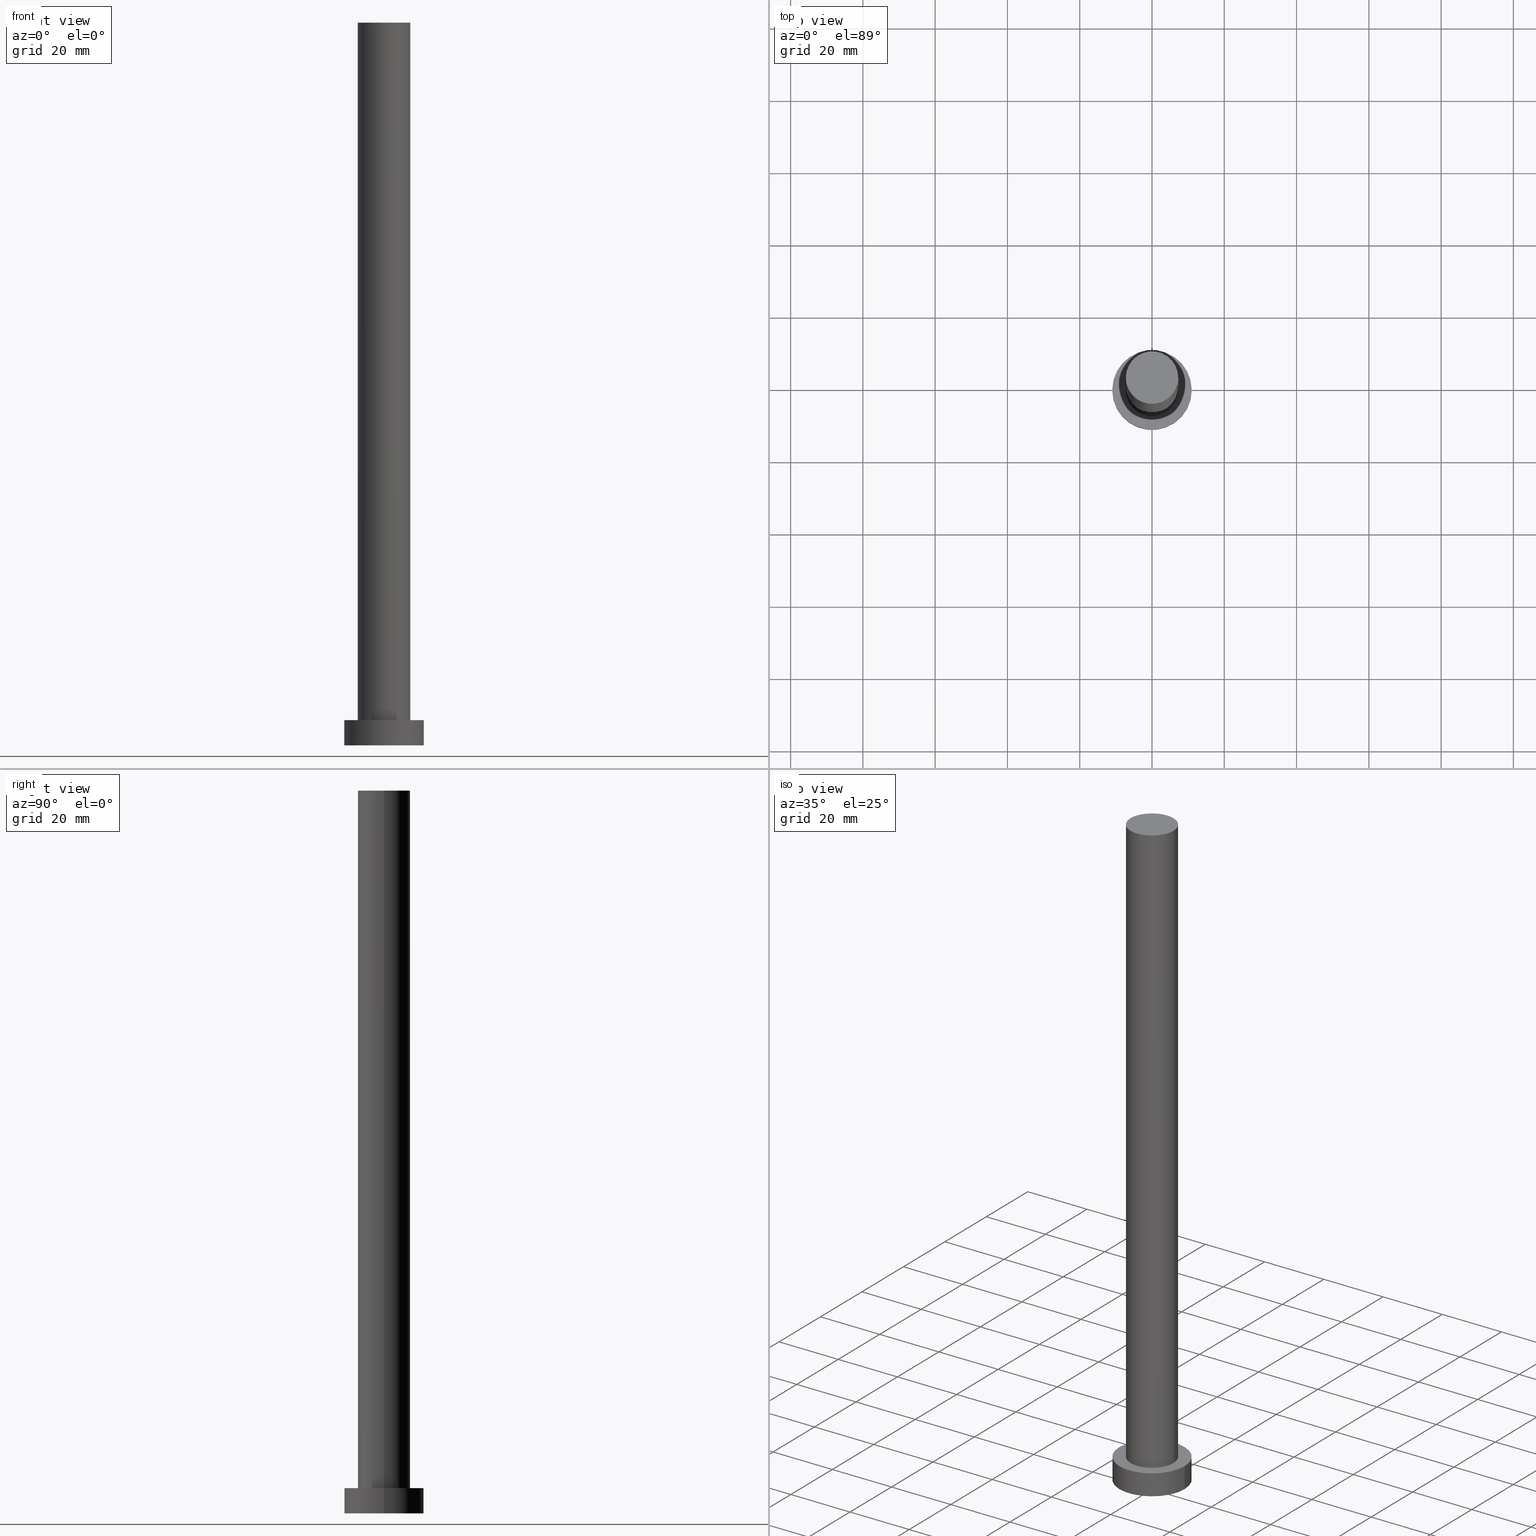
[diagram: canonical four-view strip — front | top / right | iso, engineering-drawing reading convention]
A machine part, canonical four-view strip (front | top / right | iso — engineering-drawing reading convention). The complete STEP part file that produces these views, byte-faithful:
ISO-10303-21;
HEADER;
FILE_DESCRIPTION (( 'STEP AP203' ),
    '1' );
FILE_NAME ('6792.STEP',
    '2023-02-13T10:41:29',
    ( '' ),
    ( '' ),
    'SwSTEP 2.0',
    'SolidWorks 2019',
    '' );
FILE_SCHEMA (( 'CONFIG_CONTROL_DESIGN' ));
ENDSEC;

DATA;
#1 = DIRECTION ( 'NONE',  ( 1.000000000000000000, 0.000000000000000000, 0.000000000000000000 ) ) ;
#2 = EDGE_CURVE ( 'NONE', #222, #101, #50, .T. ) ;
#3 = CLOSED_SHELL ( 'NONE', ( #128, #143, #37, #9, #38, #205, #158 ) ) ;
#4 = AXIS2_PLACEMENT_3D ( 'NONE', #5, #61, #171 ) ;
#5 = CARTESIAN_POINT ( 'NONE',  ( 0.000000000000000000, 0.000000000000000000, 200.0000000000000000 ) ) ;
#6 = DIRECTION ( 'NONE',  ( -0.000000000000000000, -0.000000000000000000, -1.000000000000000000 ) ) ;
#7 = DATE_AND_TIME ( #172, #234 ) ;
#8 = PLANE ( 'NONE',  #82 ) ;
#9 = ADVANCED_FACE ( 'NONE', ( #17, #70 ), #150, .T. ) ;
#10 = CARTESIAN_POINT ( 'NONE',  ( 7.250000000000000000, 8.878689293818310074E-16, 7.000000000000000000 ) ) ;
#11 = DIRECTION ( 'NONE',  ( -0.000000000000000000, -0.000000000000000000, -1.000000000000000000 ) ) ;
#12 = EDGE_LOOP ( 'NONE', ( #35, #184, #30, #108 ) ) ;
#13 = PRODUCT ( '6792', '6792', '', ( #134 ) ) ;
#14 = ORIENTED_EDGE ( 'NONE', *, *, #167, .F. ) ;
#15 = CC_DESIGN_DATE_AND_TIME_ASSIGNMENT ( #7, #153, ( #145 ) ) ;
#16 = AXIS2_PLACEMENT_3D ( 'NONE', #57, #75, #1 ) ;
#17 = FACE_BOUND ( 'NONE', #54, .T. ) ;
#18 = VERTEX_POINT ( 'NONE', #89 ) ;
#19 = CARTESIAN_POINT ( 'NONE',  ( 0.000000000000000000, 0.000000000000000000, 200.0000000000000000 ) ) ;
#20 = LINE ( 'NONE', #149, #116 ) ;
#21 = COORDINATED_UNIVERSAL_TIME_OFFSET ( 1, 0, .AHEAD. ) ;
#22 = CALENDAR_DATE ( 2023, 13, 2 ) ;
#23 = DIRECTION ( 'NONE',  ( -0.000000000000000000, -0.000000000000000000, -1.000000000000000000 ) ) ;
#24 = DIRECTION ( 'NONE',  ( 1.000000000000000000, 0.000000000000000000, -0.000000000000000000 ) ) ;
#25 = EDGE_LOOP ( 'NONE', ( #162, #105, #240, #68 ) ) ;
#26 = FACE_OUTER_BOUND ( 'NONE', #12, .T. ) ;
#27 = AXIS2_PLACEMENT_3D ( 'NONE', #193, #58, #138 ) ;
#28 = DIRECTION ( 'NONE',  ( 1.000000000000000000, 0.000000000000000000, 0.000000000000000000 ) ) ;
#29 = LOCAL_TIME ( 11, 41, 29.00000000000000000, #91 ) ;
#30 = ORIENTED_EDGE ( 'NONE', *, *, #167, .T. ) ;
#31 = APPROVAL ( #141, 'NEUR�EN�' ) ;
#32 = AXIS2_PLACEMENT_3D ( 'NONE', #88, #73, #152 ) ;
#33 = ORIENTED_EDGE ( 'NONE', *, *, #148, .F. ) ;
#34 = ORIENTED_EDGE ( 'NONE', *, *, #62, .T. ) ;
#35 = ORIENTED_EDGE ( 'NONE', *, *, #48, .F. ) ;
#36 = APPROVAL_STATUS ( 'not_yet_approved' ) ;
#37 = ADVANCED_FACE ( 'NONE', ( #42 ), #242, .T. ) ;
#38 = ADVANCED_FACE ( 'NONE', ( #55 ), #216, .F. ) ;
#39 = CARTESIAN_POINT ( 'NONE',  ( 0.000000000000000000, 0.000000000000000000, 0.000000000000000000 ) ) ;
#40 = CYLINDRICAL_SURFACE ( 'NONE', #120, 7.250000000000000000 ) ;
#41 = DATE_AND_TIME ( #93, #29 ) ;
#42 = FACE_OUTER_BOUND ( 'NONE', #209, .T. ) ;
#43 = AXIS2_PLACEMENT_3D ( 'NONE', #109, #46, #174 ) ;
#44 = CARTESIAN_POINT ( 'NONE',  ( 7.250000000000000000, 8.878689293818310074E-16, 200.0000000000000000 ) ) ;
#45 = DIRECTION ( 'NONE',  ( -1.000000000000000000, 0.000000000000000000, 0.000000000000000000 ) ) ;
#46 = DIRECTION ( 'NONE',  ( 0.000000000000000000, 0.000000000000000000, 1.000000000000000000 ) ) ;
#47 = DIRECTION ( 'NONE',  ( 1.000000000000000000, 0.000000000000000000, 0.000000000000000000 ) ) ;
#48 = EDGE_CURVE ( 'NONE', #210, #18, #182, .T. ) ;
#49 = PERSON_AND_ORGANIZATION_ROLE ( 'creator' ) ;
#50 = CIRCLE ( 'NONE', #124, 11.00000000000000000 ) ;
#51 = CC_DESIGN_APPROVAL ( #31, ( #106 ) ) ;
#52 = VERTEX_POINT ( 'NONE', #10 ) ;
#53 = CIRCLE ( 'NONE', #65, 7.250000000000000000 ) ;
#54 = EDGE_LOOP ( 'NONE', ( #166, #183 ) ) ;
#55 = FACE_OUTER_BOUND ( 'NONE', #218, .T. ) ;
#56 = LINE ( 'NONE', #86, #186 ) ;
#57 = CARTESIAN_POINT ( 'NONE',  ( 0.000000000000000000, 0.000000000000000000, 200.0000000000000000 ) ) ;
#58 = DIRECTION ( 'NONE',  ( 0.000000000000000000, 0.000000000000000000, 1.000000000000000000 ) ) ;
#59 = CC_DESIGN_SECURITY_CLASSIFICATION ( #106, ( #207 ) ) ;
#60 =( NAMED_UNIT ( * ) PLANE_ANGLE_UNIT ( ) SI_UNIT ( $, .RADIAN. ) );
#61 = DIRECTION ( 'NONE',  ( 0.000000000000000000, 0.000000000000000000, 1.000000000000000000 ) ) ;
#62 = EDGE_CURVE ( 'NONE', #18, #222, #56, .T. ) ;
#63 = PERSON_AND_ORGANIZATION ( #64, #155 ) ;
#64 = PERSON ( 'NEUR�EN�', 'NEUR�EN�', 'NEUR�EN�', ('NEUR�EN�'), ('NEUR�EN�'), ('NEUR�EN�') ) ;
#65 = AXIS2_PLACEMENT_3D ( 'NONE', #241, #177, #47 ) ;
#66 = CC_DESIGN_PERSON_AND_ORGANIZATION_ASSIGNMENT ( #163, #144, ( #207 ) ) ;
#67 = ORIENTED_EDGE ( 'NONE', *, *, #215, .F. ) ;
#68 = ORIENTED_EDGE ( 'NONE', *, *, #161, .F. ) ;
#69 = PERSON_AND_ORGANIZATION ( #64, #155 ) ;
#70 = FACE_OUTER_BOUND ( 'NONE', #81, .T. ) ;
#71 = CARTESIAN_POINT ( 'NONE',  ( 0.000000000000000000, 0.000000000000000000, 200.0000000000000000 ) ) ;
#72 = DESIGN_CONTEXT ( 'detailed design', #255, 'design' ) ;
#73 = DIRECTION ( 'NONE',  ( 0.000000000000000000, 0.000000000000000000, 1.000000000000000000 ) ) ;
#74 = PERSON_AND_ORGANIZATION_ROLE ( 'creator' ) ;
#75 = DIRECTION ( 'NONE',  ( 0.000000000000000000, 0.000000000000000000, 1.000000000000000000 ) ) ;
#76 = CARTESIAN_POINT ( 'NONE',  ( 0.000000000000000000, 0.000000000000000000, 7.000000000000000000 ) ) ;
#77 = CARTESIAN_POINT ( 'NONE',  ( -7.250000000000000000, 0.000000000000000000, 7.000000000000000000 ) ) ;
#78 = DATE_AND_TIME ( #230, #98 ) ;
#79 = CC_DESIGN_APPROVAL ( #83, ( #145 ) ) ;
#80 = PRODUCT_RELATED_PRODUCT_CATEGORY ( 'detail', '', ( #13 ) ) ;
#81 = EDGE_LOOP ( 'NONE', ( #164, #176 ) ) ;
#82 = AXIS2_PLACEMENT_3D ( 'NONE', #71, #130, #157 ) ;
#83 = APPROVAL ( #36, 'NEUR�EN�' ) ;
#84 = APPROVAL_ROLE ( '' ) ;
#85 = DIRECTION ( 'NONE',  ( 0.000000000000000000, 0.000000000000000000, 1.000000000000000000 ) ) ;
#86 = CARTESIAN_POINT ( 'NONE',  ( -11.00000000000000000, 0.000000000000000000, 7.000000000000000000 ) ) ;
#87 = APPROVAL ( #224, 'NEUR�EN�' ) ;
#88 = CARTESIAN_POINT ( 'NONE',  ( 0.000000000000000000, 0.000000000000000000, 0.000000000000000000 ) ) ;
#89 = CARTESIAN_POINT ( 'NONE',  ( -11.00000000000000000, 0.000000000000000000, 7.000000000000000000 ) ) ;
#90 = LINE ( 'NONE', #169, #102 ) ;
#91 = COORDINATED_UNIVERSAL_TIME_OFFSET ( 1, 0, .AHEAD. ) ;
#92 = DIRECTION ( 'NONE',  ( -1.000000000000000000, 0.000000000000000000, 0.000000000000000000 ) ) ;
#93 = CALENDAR_DATE ( 2023, 13, 2 ) ;
#94 = DIRECTION ( 'NONE',  ( 1.000000000000000000, 0.000000000000000000, 0.000000000000000000 ) ) ;
#95 = FACE_OUTER_BOUND ( 'NONE', #204, .T. ) ;
#96 = APPROVAL_ROLE ( '' ) ;
#97 = APPROVAL_PERSON_ORGANIZATION ( #244, #83, #84 ) ;
#98 = LOCAL_TIME ( 11, 41, 29.00000000000000000, #140 ) ;
#99 = ORIENTED_EDGE ( 'NONE', *, *, #161, .T. ) ;
#100 = CC_DESIGN_PERSON_AND_ORGANIZATION_ASSIGNMENT ( #187, #123, ( #13 ) ) ;
#101 = VERTEX_POINT ( 'NONE', #127 ) ;
#102 = VECTOR ( 'NONE', #23, 1000.000000000000000 ) ;
#103 = EDGE_LOOP ( 'NONE', ( #146, #203 ) ) ;
#104 = CC_DESIGN_PERSON_AND_ORGANIZATION_ASSIGNMENT ( #254, #49, ( #207 ) ) ;
#105 = ORIENTED_EDGE ( 'NONE', *, *, #194, .T. ) ;
#106 = SECURITY_CLASSIFICATION ( '', '', #232 ) ;
#107 = DIRECTION ( 'NONE',  ( -1.000000000000000000, 0.000000000000000000, 0.000000000000000000 ) ) ;
#108 = ORIENTED_EDGE ( 'NONE', *, *, #62, .F. ) ;
#109 = CARTESIAN_POINT ( 'NONE',  ( 0.000000000000000000, 0.000000000000000000, 7.000000000000000000 ) ) ;
#110 = APPROVAL_DATE_TIME ( #41, #83 ) ;
#111 = CC_DESIGN_APPROVAL ( #87, ( #207 ) ) ;
#112 = CIRCLE ( 'NONE', #43, 7.250000000000000000 ) ;
#113 = APPROVAL_PERSON_ORGANIZATION ( #69, #87, #211 ) ;
#114 = CYLINDRICAL_SURFACE ( 'NONE', #213, 11.00000000000000000 ) ;
#115 = MANIFOLD_SOLID_BREP ( 'P�idat vysunut�m3', #3 ) ;
#116 = VECTOR ( 'NONE', #195, 1000.000000000000000 ) ;
#117 = CIRCLE ( 'NONE', #4, 7.250000000000000000 ) ;
#118 = COORDINATED_UNIVERSAL_TIME_OFFSET ( 1, 0, .AHEAD. ) ;
#119 = CARTESIAN_POINT ( 'NONE',  ( 0.000000000000000000, 0.000000000000000000, 0.000000000000000000 ) ) ;
#120 = AXIS2_PLACEMENT_3D ( 'NONE', #19, #6, #107 ) ;
#121 = PERSON_AND_ORGANIZATION ( #64, #155 ) ;
#122 = VERTEX_POINT ( 'NONE', #190 ) ;
#123 = PERSON_AND_ORGANIZATION_ROLE ( 'design_owner' ) ;
#124 = AXIS2_PLACEMENT_3D ( 'NONE', #132, #188, #126 ) ;
#125 =( GEOMETRIC_REPRESENTATION_CONTEXT ( 3 ) GLOBAL_UNCERTAINTY_ASSIGNED_CONTEXT ( ( #165 ) ) GLOBAL_UNIT_ASSIGNED_CONTEXT ( ( #246, #60, #196 ) ) REPRESENTATION_CONTEXT ( 'NONE', 'WORKASPACE' ) );
#126 = DIRECTION ( 'NONE',  ( 1.000000000000000000, 0.000000000000000000, 0.000000000000000000 ) ) ;
#127 = CARTESIAN_POINT ( 'NONE',  ( 11.00000000000000000, 1.347111479062088405E-15, 0.000000000000000000 ) ) ;
#128 = ADVANCED_FACE ( 'NONE', ( #250 ), #40, .T. ) ;
#129 = CARTESIAN_POINT ( 'NONE',  ( 0.000000000000000000, 0.000000000000000000, 7.000000000000000000 ) ) ;
#130 = DIRECTION ( 'NONE',  ( 0.000000000000000000, 0.000000000000000000, 1.000000000000000000 ) ) ;
#131 = DATE_AND_TIME ( #22, #147 ) ;
#132 = CARTESIAN_POINT ( 'NONE',  ( 0.000000000000000000, 0.000000000000000000, 0.000000000000000000 ) ) ;
#133 = CARTESIAN_POINT ( 'NONE',  ( -7.250000000000000000, 0.000000000000000000, 200.0000000000000000 ) ) ;
#134 = MECHANICAL_CONTEXT ( 'NONE', #251, 'mechanical' ) ;
#135 = APPROVAL_PERSON_ORGANIZATION ( #63, #31, #96 ) ;
#136 = VERTEX_POINT ( 'NONE', #77 ) ;
#137 = CC_DESIGN_PERSON_AND_ORGANIZATION_ASSIGNMENT ( #121, #201, ( #106 ) ) ;
#138 = DIRECTION ( 'NONE',  ( 1.000000000000000000, 0.000000000000000000, 0.000000000000000000 ) ) ;
#139 = DIRECTION ( 'NONE',  ( -0.000000000000000000, -0.000000000000000000, -1.000000000000000000 ) ) ;
#140 = COORDINATED_UNIVERSAL_TIME_OFFSET ( 1, 0, .AHEAD. ) ;
#141 = APPROVAL_STATUS ( 'not_yet_approved' ) ;
#142 = EDGE_CURVE ( 'NONE', #136, #52, #112, .T. ) ;
#143 = ADVANCED_FACE ( 'NONE', ( #26 ), #114, .T. ) ;
#144 = PERSON_AND_ORGANIZATION_ROLE ( 'design_supplier' ) ;
#145 = PRODUCT_DEFINITION ( 'NEZN�M�', '', #207, #72 ) ;
#146 = ORIENTED_EDGE ( 'NONE', *, *, #215, .T. ) ;
#147 = LOCAL_TIME ( 11, 41, 29.00000000000000000, #173 ) ;
#148 = EDGE_CURVE ( 'NONE', #18, #210, #178, .T. ) ;
#149 = CARTESIAN_POINT ( 'NONE',  ( -7.250000000000000000, 0.000000000000000000, 200.0000000000000000 ) ) ;
#150 = PLANE ( 'NONE',  #200 ) ;
#151 = DIRECTION ( 'NONE',  ( -0.000000000000000000, -0.000000000000000000, -1.000000000000000000 ) ) ;
#152 = DIRECTION ( 'NONE',  ( 1.000000000000000000, 0.000000000000000000, 0.000000000000000000 ) ) ;
#153 = DATE_TIME_ROLE ( 'creation_date' ) ;
#154 = LINE ( 'NONE', #44, #214 ) ;
#155 = ORGANIZATION ( 'NEUR�EN�', 'NEUR�EN�', '' ) ;
#156 = DIRECTION ( 'NONE',  ( 0.000000000000000000, 0.000000000000000000, 1.000000000000000000 ) ) ;
#157 = DIRECTION ( 'NONE',  ( 1.000000000000000000, 0.000000000000000000, -0.000000000000000000 ) ) ;
#158 = ADVANCED_FACE ( 'NONE', ( #243 ), #8, .T. ) ;
#159 = DATE_AND_TIME ( #180, #233 ) ;
#160 = APPLICATION_PROTOCOL_DEFINITION ( 'international standard', 'config_control_design', 1994, #251 ) ;
#161 = EDGE_CURVE ( 'NONE', #198, #136, #20, .T. ) ;
#162 = ORIENTED_EDGE ( 'NONE', *, *, #179, .F. ) ;
#163 = PERSON_AND_ORGANIZATION ( #64, #155 ) ;
#164 = ORIENTED_EDGE ( 'NONE', *, *, #148, .T. ) ;
#165 = UNCERTAINTY_MEASURE_WITH_UNIT (LENGTH_MEASURE( 1.000000000000000082E-05 ), #246, 'distance_accuracy_value', 'NONE');
#166 = ORIENTED_EDGE ( 'NONE', *, *, #142, .F. ) ;
#167 = EDGE_CURVE ( 'NONE', #101, #222, #231, .T. ) ;
#168 = DIRECTION ( 'NONE',  ( 1.000000000000000000, 0.000000000000000000, -0.000000000000000000 ) ) ;
#169 = CARTESIAN_POINT ( 'NONE',  ( 11.00000000000000000, 1.347111479062088405E-15, 7.000000000000000000 ) ) ;
#170 = DIRECTION ( 'NONE',  ( -1.000000000000000000, 0.000000000000000000, 0.000000000000000000 ) ) ;
#171 = DIRECTION ( 'NONE',  ( 1.000000000000000000, 0.000000000000000000, 0.000000000000000000 ) ) ;
#172 = CALENDAR_DATE ( 2023, 13, 2 ) ;
#173 = COORDINATED_UNIVERSAL_TIME_OFFSET ( 1, 0, .AHEAD. ) ;
#174 = DIRECTION ( 'NONE',  ( 1.000000000000000000, 0.000000000000000000, 0.000000000000000000 ) ) ;
#175 = DIRECTION ( 'NONE',  ( 0.000000000000000000, 0.000000000000000000, 1.000000000000000000 ) ) ;
#176 = ORIENTED_EDGE ( 'NONE', *, *, #48, .T. ) ;
#177 = DIRECTION ( 'NONE',  ( 0.000000000000000000, 0.000000000000000000, 1.000000000000000000 ) ) ;
#178 = CIRCLE ( 'NONE', #27, 11.00000000000000000 ) ;
#179 = EDGE_CURVE ( 'NONE', #122, #198, #225, .T. ) ;
#180 = CALENDAR_DATE ( 2023, 13, 2 ) ;
#181 = ORIENTED_EDGE ( 'NONE', *, *, #142, .T. ) ;
#182 = CIRCLE ( 'NONE', #197, 11.00000000000000000 ) ;
#183 = ORIENTED_EDGE ( 'NONE', *, *, #239, .F. ) ;
#184 = ORIENTED_EDGE ( 'NONE', *, *, #228, .T. ) ;
#185 = ORIENTED_EDGE ( 'NONE', *, *, #228, .F. ) ;
#186 = VECTOR ( 'NONE', #11, 1000.000000000000000 ) ;
#187 = PERSON_AND_ORGANIZATION ( #64, #155 ) ;
#188 = DIRECTION ( 'NONE',  ( 0.000000000000000000, 0.000000000000000000, 1.000000000000000000 ) ) ;
#189 = CARTESIAN_POINT ( 'NONE',  ( 0.000000000000000000, 0.000000000000000000, 7.000000000000000000 ) ) ;
#190 = CARTESIAN_POINT ( 'NONE',  ( 7.250000000000000000, 8.878689293818310074E-16, 200.0000000000000000 ) ) ;
#191 = PERSON_AND_ORGANIZATION ( #64, #155 ) ;
#192 = AXIS2_PLACEMENT_3D ( 'NONE', #119, #199, #28 ) ;
#193 = CARTESIAN_POINT ( 'NONE',  ( 0.000000000000000000, 0.000000000000000000, 7.000000000000000000 ) ) ;
#194 = EDGE_CURVE ( 'NONE', #122, #52, #154, .T. ) ;
#195 = DIRECTION ( 'NONE',  ( -0.000000000000000000, -0.000000000000000000, -1.000000000000000000 ) ) ;
#196 =( NAMED_UNIT ( * ) SI_UNIT ( $, .STERADIAN. ) SOLID_ANGLE_UNIT ( ) );
#197 = AXIS2_PLACEMENT_3D ( 'NONE', #76, #175, #94 ) ;
#198 = VERTEX_POINT ( 'NONE', #133 ) ;
#199 = DIRECTION ( 'NONE',  ( 0.000000000000000000, 0.000000000000000000, 1.000000000000000000 ) ) ;
#200 = AXIS2_PLACEMENT_3D ( 'NONE', #129, #85, #168 ) ;
#201 = PERSON_AND_ORGANIZATION_ROLE ( 'classification_officer' ) ;
#202 = ADVANCED_BREP_SHAPE_REPRESENTATION ( '6792', ( #115, #192 ), #125 ) ;
#203 = ORIENTED_EDGE ( 'NONE', *, *, #179, .T. ) ;
#204 = EDGE_LOOP ( 'NONE', ( #235, #67, #99, #181 ) ) ;
#205 = ADVANCED_FACE ( 'NONE', ( #95 ), #223, .T. ) ;
#206 = CC_DESIGN_PERSON_AND_ORGANIZATION_ASSIGNMENT ( #191, #74, ( #145 ) ) ;
#207 = PRODUCT_DEFINITION_FORMATION_WITH_SPECIFIED_SOURCE ( 'LIBOVOLN�', '', #13, .NOT_KNOWN. ) ;
#208 = ORIENTED_EDGE ( 'NONE', *, *, #2, .F. ) ;
#209 = EDGE_LOOP ( 'NONE', ( #185, #33, #34, #212 ) ) ;
#210 = VERTEX_POINT ( 'NONE', #217 ) ;
#211 = APPROVAL_ROLE ( '' ) ;
#212 = ORIENTED_EDGE ( 'NONE', *, *, #2, .T. ) ;
#213 = AXIS2_PLACEMENT_3D ( 'NONE', #189, #139, #92 ) ;
#214 = VECTOR ( 'NONE', #219, 1000.000000000000000 ) ;
#215 = EDGE_CURVE ( 'NONE', #198, #122, #117, .T. ) ;
#216 = PLANE ( 'NONE',  #248 ) ;
#217 = CARTESIAN_POINT ( 'NONE',  ( 11.00000000000000000, 1.347111479062088405E-15, 7.000000000000000000 ) ) ;
#218 = EDGE_LOOP ( 'NONE', ( #208, #14 ) ) ;
#219 = DIRECTION ( 'NONE',  ( -0.000000000000000000, -0.000000000000000000, -1.000000000000000000 ) ) ;
#220 = APPLICATION_PROTOCOL_DEFINITION ( 'international standard', 'config_control_design', 1994, #255 ) ;
#221 = SHAPE_DEFINITION_REPRESENTATION ( #249, #202 ) ;
#222 = VERTEX_POINT ( 'NONE', #229 ) ;
#223 = CYLINDRICAL_SURFACE ( 'NONE', #238, 7.250000000000000000 ) ;
#224 = APPROVAL_STATUS ( 'not_yet_approved' ) ;
#225 = CIRCLE ( 'NONE', #16, 7.250000000000000000 ) ;
#226 = DIRECTION ( 'NONE',  ( -0.000000000000000000, -0.000000000000000000, -1.000000000000000000 ) ) ;
#227 = CARTESIAN_POINT ( 'NONE',  ( 0.000000000000000000, 0.000000000000000000, 200.0000000000000000 ) ) ;
#228 = EDGE_CURVE ( 'NONE', #210, #101, #90, .T. ) ;
#229 = CARTESIAN_POINT ( 'NONE',  ( -11.00000000000000000, 0.000000000000000000, 0.000000000000000000 ) ) ;
#230 = CALENDAR_DATE ( 2023, 13, 2 ) ;
#231 = CIRCLE ( 'NONE', #32, 11.00000000000000000 ) ;
#232 = SECURITY_CLASSIFICATION_LEVEL ( 'unclassified' ) ;
#233 = LOCAL_TIME ( 11, 41, 29.00000000000000000, #118 ) ;
#234 = LOCAL_TIME ( 11, 41, 29.00000000000000000, #21 ) ;
#235 = ORIENTED_EDGE ( 'NONE', *, *, #194, .F. ) ;
#236 = CC_DESIGN_DATE_AND_TIME_ASSIGNMENT ( #78, #252, ( #106 ) ) ;
#237 = CARTESIAN_POINT ( 'NONE',  ( 0.000000000000000000, 0.000000000000000000, 7.000000000000000000 ) ) ;
#238 = AXIS2_PLACEMENT_3D ( 'NONE', #227, #151, #170 ) ;
#239 = EDGE_CURVE ( 'NONE', #52, #136, #53, .T. ) ;
#240 = ORIENTED_EDGE ( 'NONE', *, *, #239, .T. ) ;
#241 = CARTESIAN_POINT ( 'NONE',  ( 0.000000000000000000, 0.000000000000000000, 7.000000000000000000 ) ) ;
#242 = CYLINDRICAL_SURFACE ( 'NONE', #247, 11.00000000000000000 ) ;
#243 = FACE_OUTER_BOUND ( 'NONE', #103, .T. ) ;
#244 = PERSON_AND_ORGANIZATION ( #64, #155 ) ;
#245 = APPROVAL_DATE_TIME ( #131, #31 ) ;
#246 =( LENGTH_UNIT ( ) NAMED_UNIT ( * ) SI_UNIT ( .MILLI., .METRE. ) );
#247 = AXIS2_PLACEMENT_3D ( 'NONE', #237, #226, #45 ) ;
#248 = AXIS2_PLACEMENT_3D ( 'NONE', #39, #156, #24 ) ;
#249 = PRODUCT_DEFINITION_SHAPE ( 'NONE', 'NONE',  #145 ) ;
#250 = FACE_OUTER_BOUND ( 'NONE', #25, .T. ) ;
#251 = APPLICATION_CONTEXT ( 'configuration controlled 3d designs of mechanical parts and assemblies' ) ;
#252 = DATE_TIME_ROLE ( 'classification_date' ) ;
#253 = APPROVAL_DATE_TIME ( #159, #87 ) ;
#254 = PERSON_AND_ORGANIZATION ( #64, #155 ) ;
#255 = APPLICATION_CONTEXT ( 'configuration controlled 3d designs of mechanical parts and assemblies' ) ;
ENDSEC;
END-ISO-10303-21;
